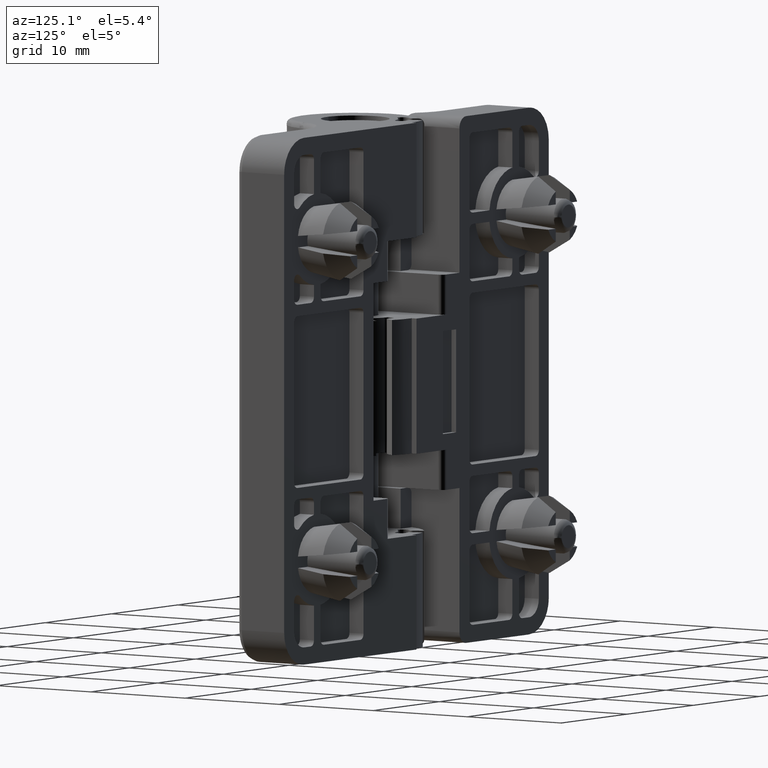
[diagram: clean part render]
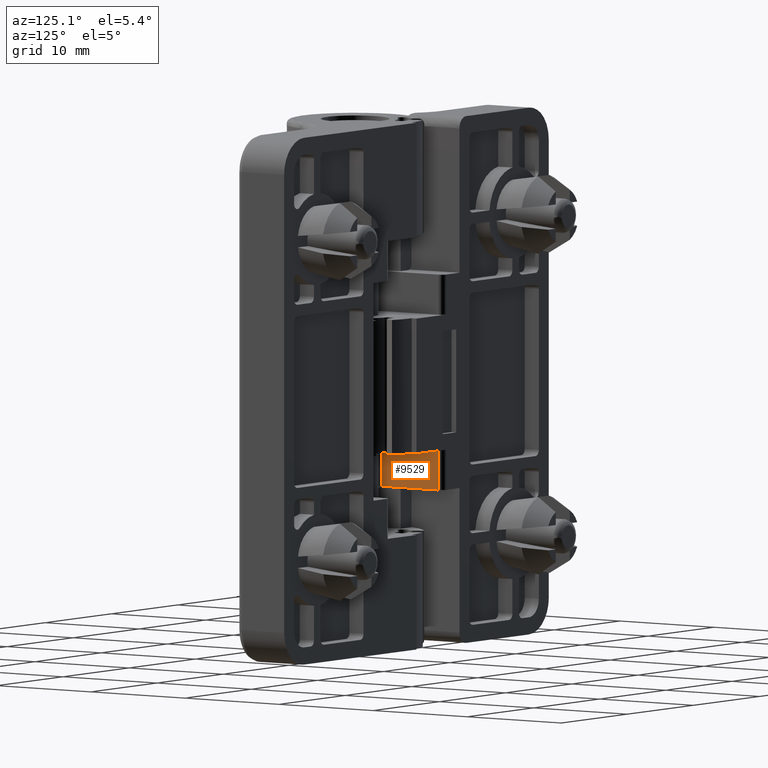
[diagram: same view with one face highlighted and labeled with its STEP entity id]
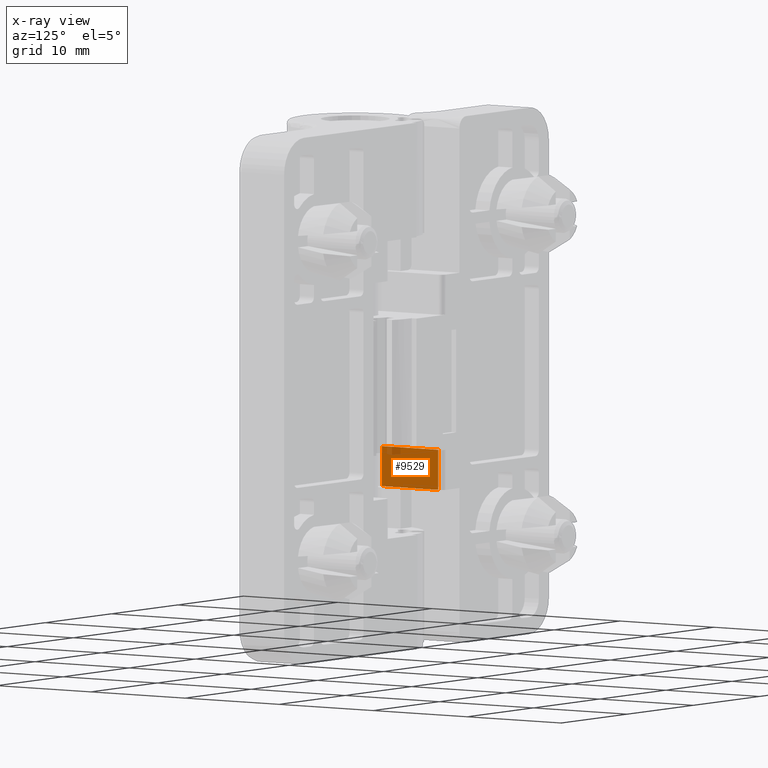
[diagram: x-ray of the same camera — body ghosted, the highlighted face saturated]
A machine part, auxiliary view. The second image highlights one B-rep face of the part: STEP entity #9529.
The next image is the same camera in x-ray: the body ghosted, the highlighted face saturated — about 5% of this face is hidden behind the body in this view.
In plain terms, the highlighted face is a freeform B-spline surface patch.
Its self-contained STEP definition (entity closure, byte-faithful):
#8308=CARTESIAN_POINT('',(-3.999999999943045,5.999999999987940,-9.399999999998189));
#8309=VERTEX_POINT('',#8308);
#8320=CARTESIAN_POINT('',(-3.999999999943045,0.0,-9.399999999998189));
#8321=VERTEX_POINT('',#8320);
#8322=CARTESIAN_POINT('',(-3.999999999943045,0.0,-9.399999999998189));
#8323=CARTESIAN_POINT('',(-3.999999999943045,5.999999999987940,-9.399999999998189));
#8324=QUASI_UNIFORM_CURVE('',1,(#8322,#8323),.UNSPECIFIED.,.F.,.U.);
#8325=EDGE_CURVE('',#8321,#8309,#8324,.T.);
#9411=CARTESIAN_POINT('',(-3.999999999943045,5.999999999987940,-5.899999999998189));
#9412=VERTEX_POINT('',#9411);
#9425=CARTESIAN_POINT('',(-3.999999999943045,5.999999999987940,-9.399999999998189));
#9426=CARTESIAN_POINT('',(-3.999999999943045,5.999999999987940,-5.899999999998189));
#9427=QUASI_UNIFORM_CURVE('',1,(#9425,#9426),.UNSPECIFIED.,.F.,.U.);
#9428=EDGE_CURVE('',#8309,#9412,#9427,.T.);
#9508=CARTESIAN_POINT('',(-3.999999999943045,-0.299699988370233,-9.574824993214511));
#9509=CARTESIAN_POINT('',(-3.999999999943045,-0.299699988370233,-5.725174912904553));
#9510=CARTESIAN_POINT('',(-3.999999999943045,6.299700149290716,-9.574824993214511));
#9511=CARTESIAN_POINT('',(-3.999999999943045,6.299700149290716,-5.725174912904553));
#9512=B_SPLINE_SURFACE_WITH_KNOTS('',1,1,((#9508,#9510),(#9509,#9511)),.UNSPECIFIED.,.F.,.F.,.U.,(2,2),(2,2),(0.0,3.849650080309958),(0.0,6.599400137660950),.UNSPECIFIED.);
#9513=ORIENTED_EDGE('',*,*,#8325,.T.);
#9514=ORIENTED_EDGE('',*,*,#9428,.T.);
#9515=CARTESIAN_POINT('',(-3.999999999943045,0.0,-5.899999999998240));
#9516=VERTEX_POINT('',#9515);
#9517=CARTESIAN_POINT('',(-3.999999999943045,0.0,-5.899999999998240));
#9518=CARTESIAN_POINT('',(-3.999999999943045,5.999999999987940,-5.899999999998189));
#9519=QUASI_UNIFORM_CURVE('',1,(#9517,#9518),.UNSPECIFIED.,.F.,.U.);
#9520=EDGE_CURVE('',#9516,#9412,#9519,.T.);
#9521=ORIENTED_EDGE('',*,*,#9520,.F.);
#9522=CARTESIAN_POINT('',(-3.999999999943045,0.0,-5.899999999998240));
#9523=CARTESIAN_POINT('',(-3.999999999943045,0.0,-9.399999999998189));
#9524=QUASI_UNIFORM_CURVE('',1,(#9522,#9523),.UNSPECIFIED.,.F.,.U.);
#9525=EDGE_CURVE('',#9516,#8321,#9524,.T.);
#9526=ORIENTED_EDGE('',*,*,#9525,.T.);
#9527=EDGE_LOOP('',(#9513,#9514,#9521,#9526));
#9528=FACE_OUTER_BOUND('',#9527,.T.);
#9529=ADVANCED_FACE('',(#9528),#9512,.F.);